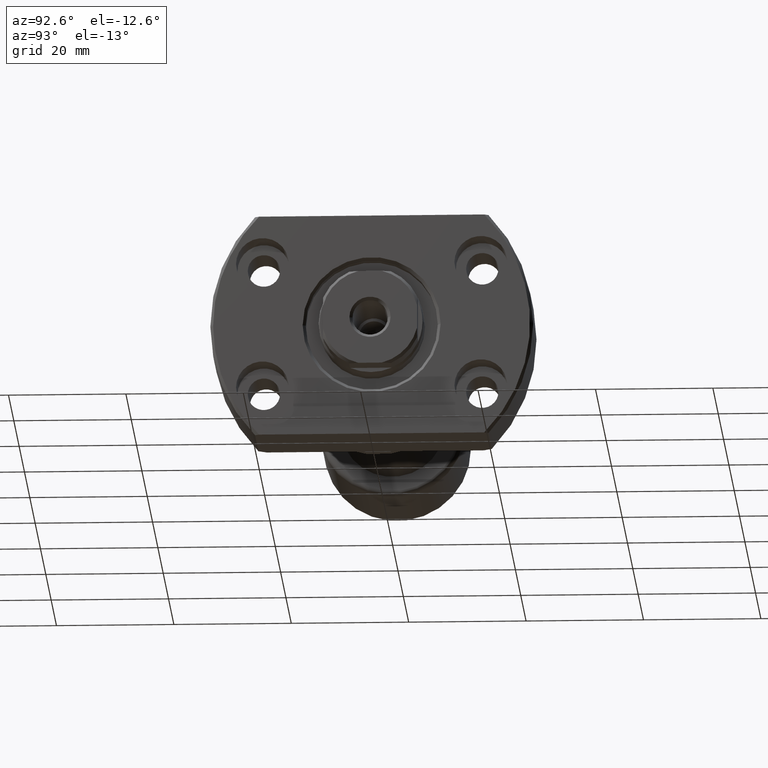
[diagram: clean part render]
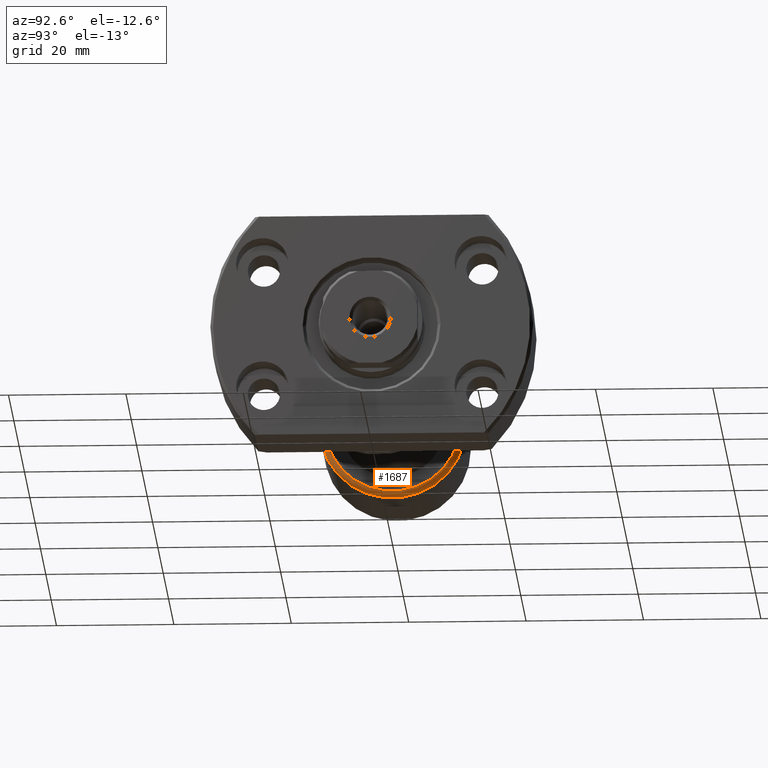
[diagram: same view with one face highlighted and labeled with its STEP entity id]
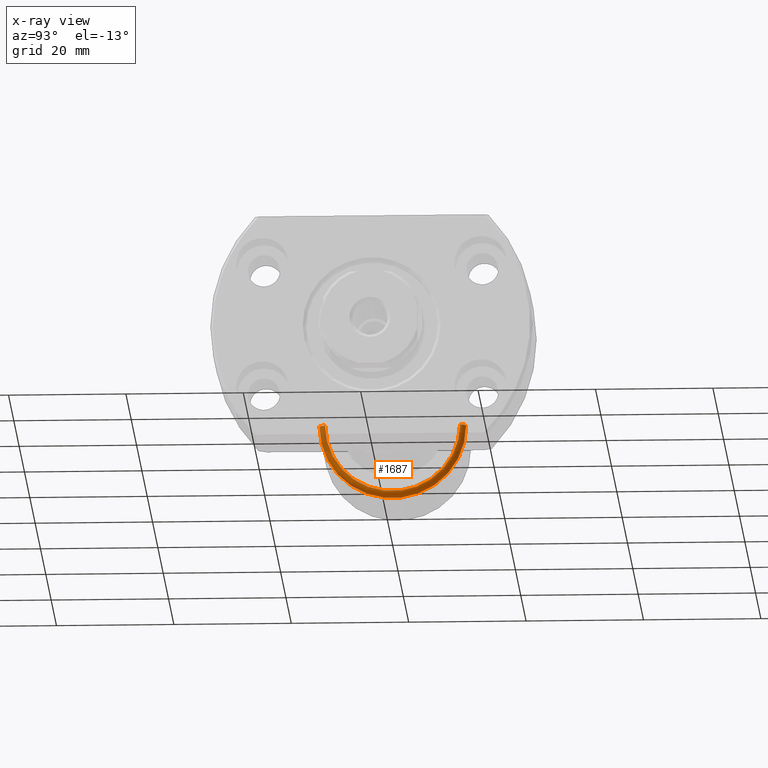
[diagram: x-ray of the same camera — body ghosted, the highlighted face saturated]
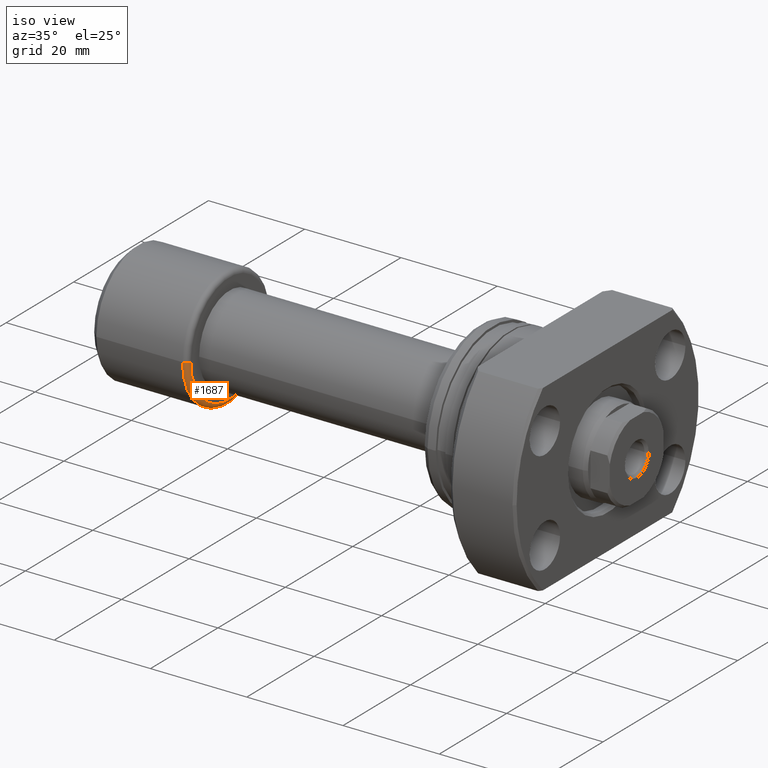
[diagram: same view with one face highlighted and labeled with its STEP entity id]
A machine part, auxiliary view. The second image highlights one B-rep face of the part: STEP entity #1687.
The next image is the same camera in x-ray: the body ghosted, the highlighted face saturated — about 22% of this face is hidden behind the body in this view.
A second angle (iso view) of the same face is appended — the face is thin or edge-on in the first view.
In plain terms, the highlighted toroidal blend (fillet) surface has major radius 11.5 mm and minor (blend) radius 1 mm.
Its self-contained STEP definition (entity closure, byte-faithful):
#42 = DIRECTION ( 'NONE',  ( 0.000000000000000000, -1.000000000000000000, 0.000000000000000000 ) ) ;
#218 = CARTESIAN_POINT ( 'NONE',  ( 19.39999999999999503, -11.50000000000000000, 0.000000000000000000 ) ) ;
#232 = DIRECTION ( 'NONE',  ( -1.000000000000000000, 0.000000000000000000, 0.000000000000000000 ) ) ;
#347 = CARTESIAN_POINT ( 'NONE',  ( 20.39999999999999503, 11.50000000000000000, 1.469576158976823947E-15 ) ) ;
#418 = DIRECTION ( 'NONE',  ( 1.309811581274509052E-33, -1.224646799147353207E-16, 1.000000000000000000 ) ) ;
#421 = CARTESIAN_POINT ( 'NONE',  ( 19.39999999999999503, 0.000000000000000000, 0.000000000000000000 ) ) ;
#446 = AXIS2_PLACEMENT_3D ( 'NONE', #421, #3204, #1420 ) ;
#554 = CARTESIAN_POINT ( 'NONE',  ( 19.39999999999999503, 2.074912104813986935E-16, 0.000000000000000000 ) ) ;
#598 = AXIS2_PLACEMENT_3D ( 'NONE', #218, #1219, #232 ) ;
#721 = CARTESIAN_POINT ( 'NONE',  ( 20.39999999999999503, 2.181866337020893623E-16, 0.000000000000000000 ) ) ;
#875 = ORIENTED_EDGE ( 'NONE', *, *, #2182, .F. ) ;
#969 = AXIS2_PLACEMENT_3D ( 'NONE', #554, #1552, #42 ) ;
#1089 = VERTEX_POINT ( 'NONE', #347 ) ;
#1183 = CARTESIAN_POINT ( 'NONE',  ( 19.39999999999999503, 12.50000000000000000, 1.530808498934191521E-15 ) ) ;
#1219 = DIRECTION ( 'NONE',  ( 0.000000000000000000, 0.000000000000000000, -1.000000000000000000 ) ) ;
#1407 = VERTEX_POINT ( 'NONE', #2500 ) ;
#1420 = DIRECTION ( 'NONE',  ( 1.069542322069065955E-17, -1.000000000000000000, 0.000000000000000000 ) ) ;
#1470 = DIRECTION ( 'NONE',  ( -1.000000000000000000, -1.069542322069065801E-17, -0.000000000000000000 ) ) ;
#1552 = DIRECTION ( 'NONE',  ( -1.000000000000000000, -1.069542322069065801E-17, -0.000000000000000000 ) ) ;
#1588 = CIRCLE ( 'NONE', #969, 12.50000000000000000 ) ;
#1612 = EDGE_LOOP ( 'NONE', ( #875, #2783, #1776, #2781 ) ) ;
#1684 = EDGE_CURVE ( 'NONE', #3131, #1407, #2165, .T. ) ;
#1687 = ADVANCED_FACE ( 'NONE', ( #2204 ), #1860, .T. ) ;
#1743 = CIRCLE ( 'NONE', #3203, 11.50000000000000000 ) ;
#1754 = EDGE_CURVE ( 'NONE', #1089, #3131, #1743, .T. ) ;
#1774 = VERTEX_POINT ( 'NONE', #1183 ) ;
#1776 = ORIENTED_EDGE ( 'NONE', *, *, #1684, .T. ) ;
#1860 = TOROIDAL_SURFACE ( 'NONE', #446, 11.50000000000000000, 1.000000000000000888 ) ;
#1937 = DIRECTION ( 'NONE',  ( 0.000000000000000000, -1.000000000000000000, -1.224646799147353454E-16 ) ) ;
#1953 = CARTESIAN_POINT ( 'NONE',  ( 20.39999999999999503, -11.50000000000000000, 0.000000000000000000 ) ) ;
#2165 = CIRCLE ( 'NONE', #598, 1.000000000000000888 ) ;
#2182 = EDGE_CURVE ( 'NONE', #1089, #1774, #2356, .T. ) ;
#2200 = CARTESIAN_POINT ( 'NONE',  ( 19.39999999999999503, 11.50000000000000000, 1.408343819019456176E-15 ) ) ;
#2204 = FACE_OUTER_BOUND ( 'NONE', #1612, .T. ) ;
#2356 = CIRCLE ( 'NONE', #2948, 1.000000000000000888 ) ;
#2500 = CARTESIAN_POINT ( 'NONE',  ( 19.39999999999999503, -12.50000000000000000, 0.000000000000000000 ) ) ;
#2781 = ORIENTED_EDGE ( 'NONE', *, *, #2851, .F. ) ;
#2783 = ORIENTED_EDGE ( 'NONE', *, *, #1754, .T. ) ;
#2851 = EDGE_CURVE ( 'NONE', #1774, #1407, #1588, .T. ) ;
#2948 = AXIS2_PLACEMENT_3D ( 'NONE', #2200, #418, #1937 ) ;
#3131 = VERTEX_POINT ( 'NONE', #1953 ) ;
#3176 = DIRECTION ( 'NONE',  ( 0.000000000000000000, -1.000000000000000000, 0.000000000000000000 ) ) ;
#3203 = AXIS2_PLACEMENT_3D ( 'NONE', #721, #1470, #3176 ) ;
#3204 = DIRECTION ( 'NONE',  ( -1.000000000000000000, -1.069542322069065801E-17, -0.000000000000000000 ) ) ;